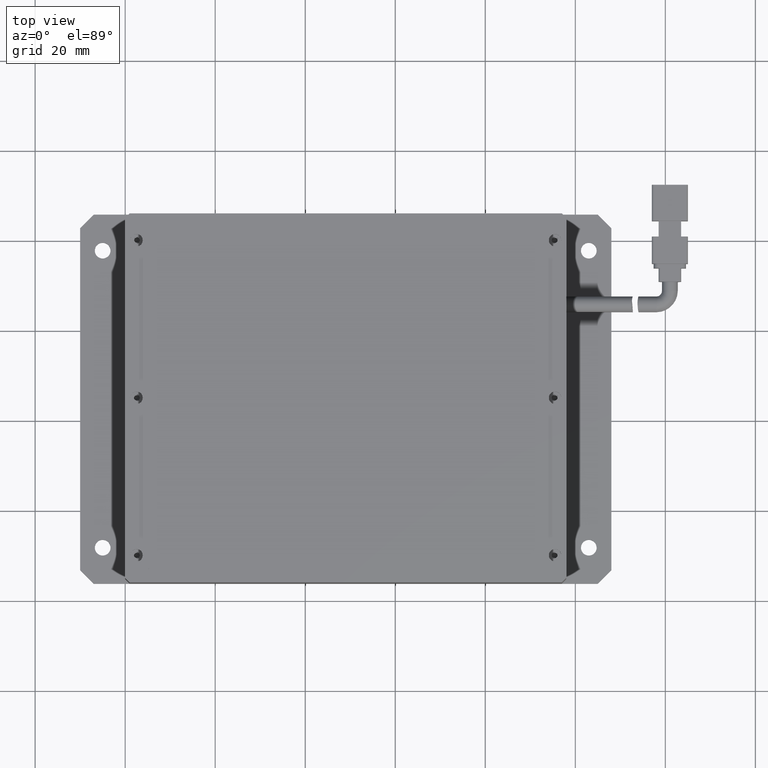
[diagram: clean part render]
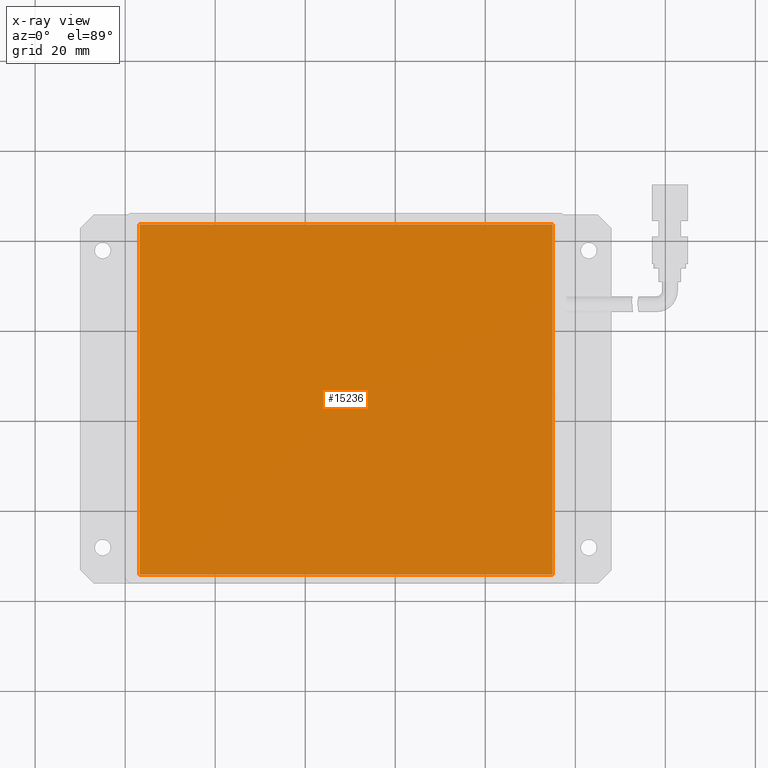
[diagram: x-ray — body ghosted, one internal face saturated and labeled with its STEP entity id]
A machine part, top view, then the same camera in x-ray: the body is ghosted and one INTERNAL B-rep face — a face not visible from any outside direction — is saturated and labeled: STEP entity #15236.
In plain terms, the highlighted planar face has unit normal (0, 0, -1).
Its self-contained STEP definition (entity closure, byte-faithful):
#202 = FACE_OUTER_BOUND ( 'NONE', #10406, .T. ) ;
#1385 = DIRECTION ( 'NONE',  ( 0.0000000000000000000, 1.000000000000000000, 0.0000000000000000000 ) ) ;
#2944 = VERTEX_POINT ( 'NONE', #41841 ) ;
#4046 = EDGE_CURVE ( 'NONE', #2944, #45028, #49121, .T. ) ;
#7532 = CARTESIAN_POINT ( 'NONE',  ( 55.00152730049637000, 43.65299732722415600, 0.2999999999955148000 ) ) ;
#10406 = EDGE_LOOP ( 'NONE', ( #31898, #18166, #31272, #39509 ) ) ;
#11663 = DIRECTION ( 'NONE',  ( -0.0000000000000000000, -1.000000000000000000, -0.0000000000000000000 ) ) ;
#12428 = LINE ( 'NONE', #7532, #32986 ) ;
#13821 = CARTESIAN_POINT ( 'NONE',  ( -36.79847269950362000, 43.65299732722415600, 0.2999999999955148000 ) ) ;
#15155 = DIRECTION ( 'NONE',  ( 0.0000000000000000000, 0.0000000000000000000, -1.000000000000000000 ) ) ;
#15236 = ADVANCED_FACE ( 'NONE', ( #202 ), #35319, .T. ) ;
#17064 = EDGE_CURVE ( 'NONE', #51997, #2944, #22800, .T. ) ;
#17588 = VECTOR ( 'NONE', #21262, 1000.000000000000000 ) ;
#18166 = ORIENTED_EDGE ( 'NONE', *, *, #4046, .T. ) ;
#18179 = VECTOR ( 'NONE', #33975, 1000.000000000000000 ) ;
#21262 = DIRECTION ( 'NONE',  ( 1.000000000000000000, -0.0000000000000000000, 0.0000000000000000000 ) ) ;
#21507 = VECTOR ( 'NONE', #1385, 1000.000000000000000 ) ;
#21566 = VERTEX_POINT ( 'NONE', #44256 ) ;
#22144 = CARTESIAN_POINT ( 'NONE',  ( -36.79847269950362700, -34.14700267277584100, 0.2999999999955148000 ) ) ;
#22800 = LINE ( 'NONE', #13821, #21507 ) ;
#29105 = LINE ( 'NONE', #50376, #18179 ) ;
#31272 = ORIENTED_EDGE ( 'NONE', *, *, #34848, .T. ) ;
#31898 = ORIENTED_EDGE ( 'NONE', *, *, #17064, .T. ) ;
#31926 = CARTESIAN_POINT ( 'NONE',  ( 55.00152730049636300, 43.65299732722415600, 0.2999999999955148000 ) ) ;
#32986 = VECTOR ( 'NONE', #11663, 1000.000000000000000 ) ;
#33975 = DIRECTION ( 'NONE',  ( -1.000000000000000000, 0.0000000000000000000, -0.0000000000000000000 ) ) ;
#34848 = EDGE_CURVE ( 'NONE', #45028, #21566, #12428, .T. ) ;
#35039 = EDGE_CURVE ( 'NONE', #21566, #51997, #29105, .T. ) ;
#35319 = PLANE ( 'NONE',  #42921 ) ;
#39509 = ORIENTED_EDGE ( 'NONE', *, *, #35039, .T. ) ;
#39783 = CARTESIAN_POINT ( 'NONE',  ( 55.00152730049637000, 43.65299732722415600, 0.2999999999955148000 ) ) ;
#41841 = CARTESIAN_POINT ( 'NONE',  ( -36.79847269950362700, 43.65299732722415600, 0.2999999999955148000 ) ) ;
#42921 = AXIS2_PLACEMENT_3D ( 'NONE', #39783, #15155, #43927 ) ;
#43927 = DIRECTION ( 'NONE',  ( -1.000000000000000000, 0.0000000000000000000, -0.0000000000000000000 ) ) ;
#44256 = CARTESIAN_POINT ( 'NONE',  ( 55.00152730049636300, -34.14700267277584100, 0.2999999999955148000 ) ) ;
#45028 = VERTEX_POINT ( 'NONE', #31926 ) ;
#45892 = CARTESIAN_POINT ( 'NONE',  ( 55.00152730049637000, 43.65299732722415600, 0.2999999999955148000 ) ) ;
#49121 = LINE ( 'NONE', #45892, #17588 ) ;
#50376 = CARTESIAN_POINT ( 'NONE',  ( 55.00152730049637000, -34.14700267277584100, 0.2999999999955148000 ) ) ;
#51997 = VERTEX_POINT ( 'NONE', #22144 ) ;